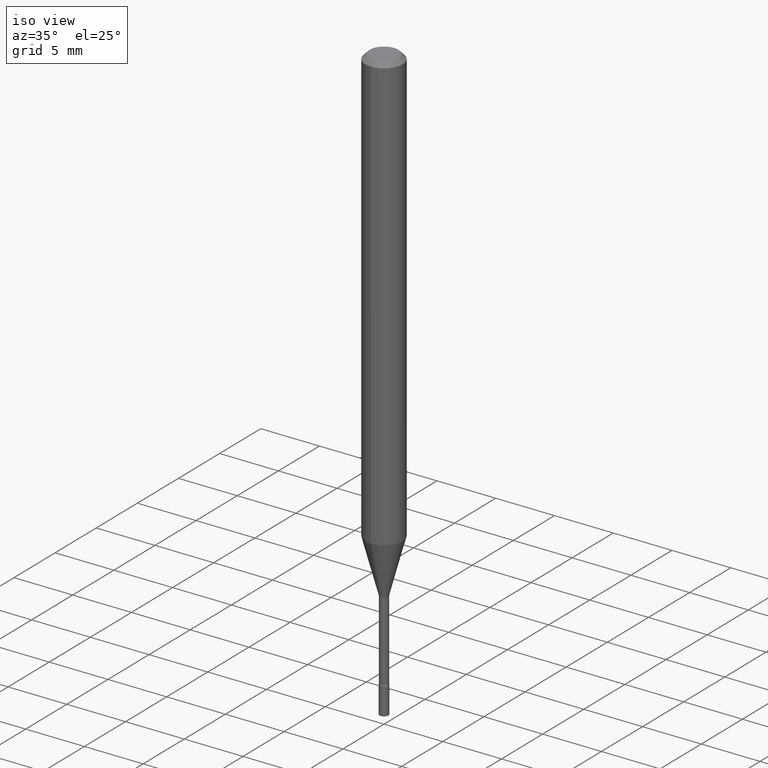
[diagram: clean part render]
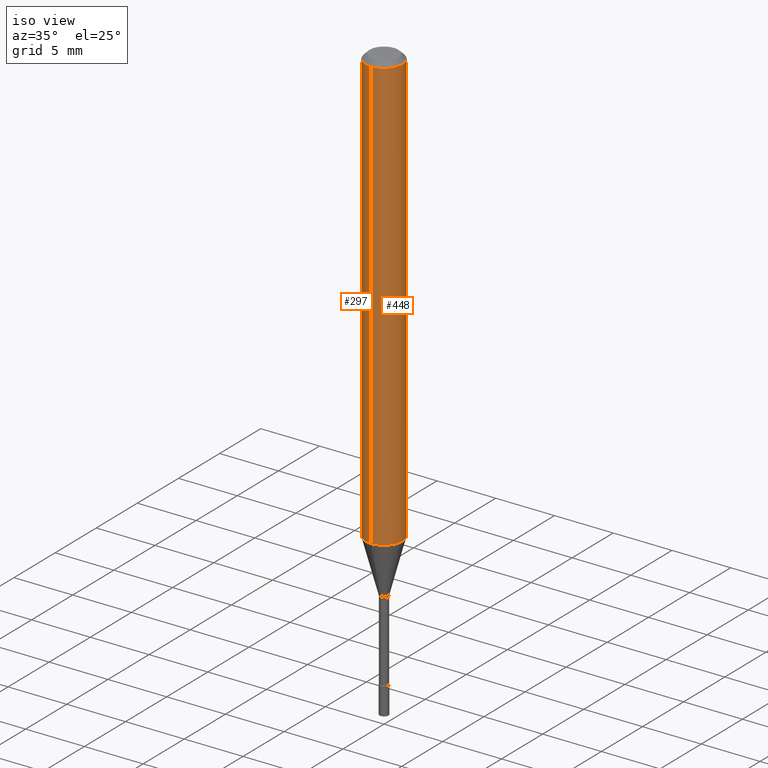
[diagram: same view with one multi-face feature highlighted, each face labeled with its STEP entity id]
A machine part, iso view. The highlighted faces form ONE feature: a constant-radius fillet chain: 2 tangent blend faces with common blend radius 1.5875 mm. The faces share edges in the B-rep.
Their STEP definitions:
[1] entity #297 (Cylinder):
#39 = VECTOR ( 'NONE', #213, 39.37007874015748143 ) ;
#55 = ORIENTED_EDGE ( 'NONE', *, *, #88, .T. ) ;
#64 = AXIS2_PLACEMENT_3D ( 'NONE', #511, #395, #173 ) ;
#82 = AXIS2_PLACEMENT_3D ( 'NONE', #109, #467, #472 ) ;
#84 = CARTESIAN_POINT ( 'NONE',  ( 0.000000000000000000, 0.000000000000000000, 0.000000000000000000 ) ) ;
#88 = EDGE_CURVE ( 'NONE', #349, #383, #328, .T. ) ;
#94 = EDGE_LOOP ( 'NONE', ( #263, #55, #135, #216 ) ) ;
#109 = CARTESIAN_POINT ( 'NONE',  ( 3.568941879278567028E-29, -5.095213877627770922E-15, -1.459368740913666640 ) ) ;
#122 = CARTESIAN_POINT ( 'NONE',  ( 4.440892098500625669E-16, 0.06250000000000000000, -2.182113803207564873E-16 ) ) ;
#135 = ORIENTED_EDGE ( 'NONE', *, *, #175, .T. ) ;
#149 = EDGE_CURVE ( 'NONE', #349, #315, #444, .T. ) ;
#161 = DIRECTION ( 'NONE',  ( -2.445538114681118856E-29, 3.491382085132104190E-15, 1.000000000000000000 ) ) ;
#173 = DIRECTION ( 'NONE',  ( -6.982962677686265922E-15, -1.000000000000000000, 3.483106191921935554E-15 ) ) ;
#175 = EDGE_CURVE ( 'NONE', #383, #373, #460, .T. ) ;
#209 = AXIS2_PLACEMENT_3D ( 'NONE', #84, #161, #270 ) ;
#213 = DIRECTION ( 'NONE',  ( -2.445538114681118576E-29, 3.491382085132104585E-15, 1.000000000000000000 ) ) ;
#216 = ORIENTED_EDGE ( 'NONE', *, *, #301, .F. ) ;
#235 = CARTESIAN_POINT ( 'NONE',  ( 4.440892098500981149E-16, 0.06249999999999489991, -1.459368740913666862 ) ) ;
#237 = CARTESIAN_POINT ( 'NONE',  ( -4.364351673553912750E-16, -0.06250000000000005551, -0.01499999999999981209 ) ) ;
#263 = ORIENTED_EDGE ( 'NONE', *, *, #149, .F. ) ;
#270 = DIRECTION ( 'NONE',  ( -6.982962677686265922E-15, -1.000000000000000000, 3.491382085132103796E-15 ) ) ;
#280 = CYLINDRICAL_SURFACE ( 'NONE', #209, 0.06250000000000000000 ) ;
#286 = CARTESIAN_POINT ( 'NONE',  ( -4.364351673553560721E-16, -0.06250000000000510703, -1.459368740913666196 ) ) ;
#294 = CARTESIAN_POINT ( 'NONE',  ( 4.440892098500985093E-16, 0.06249999999999995143, -0.01500000000000024751 ) ) ;
#297 = ADVANCED_FACE ( 'NONE', ( #363 ), #280, .T. ) ;
#301 = EDGE_CURVE ( 'NONE', #315, #373, #317, .T. ) ;
#315 = VERTEX_POINT ( 'NONE', #294 ) ;
#317 = CIRCLE ( 'NONE', #64, 0.06250000000000000000 ) ;
#328 = CIRCLE ( 'NONE', #82, 0.06250000000000000000 ) ;
#338 = DIRECTION ( 'NONE',  ( -2.445538114681118576E-29, 3.491382085132104585E-15, 1.000000000000000000 ) ) ;
#349 = VERTEX_POINT ( 'NONE', #235 ) ;
#363 = FACE_OUTER_BOUND ( 'NONE', #94, .T. ) ;
#373 = VERTEX_POINT ( 'NONE', #237 ) ;
#383 = VERTEX_POINT ( 'NONE', #286 ) ;
#395 = DIRECTION ( 'NONE',  ( -2.445538114681118856E-29, 3.491382085132104190E-15, 1.000000000000000000 ) ) ;
#422 = CARTESIAN_POINT ( 'NONE',  ( -4.364351673553916201E-16, -0.06250000000000000000, 2.182113803207564873E-16 ) ) ;
#441 = VECTOR ( 'NONE', #338, 39.37007874015748143 ) ;
#444 = LINE ( 'NONE', #122, #441 ) ;
#460 = LINE ( 'NONE', #422, #39 ) ;
#467 = DIRECTION ( 'NONE',  ( -2.445538114681118856E-29, 3.491382085132104190E-15, 1.000000000000000000 ) ) ;
#472 = DIRECTION ( 'NONE',  ( -6.982962677686265922E-15, -1.000000000000000000, 4.370956789862821150E-15 ) ) ;
#511 = CARTESIAN_POINT ( 'NONE',  ( 3.668307172021685729E-31, -5.237073127698167330E-17, -0.01500000000000003067 ) ) ;
[2] entity #448 (Cylinder):
#4 = DIRECTION ( 'NONE',  ( -2.445538114681118856E-29, 3.491382085132104190E-15, 1.000000000000000000 ) ) ;
#9 = EDGE_CURVE ( 'NONE', #383, #349, #507, .T. ) ;
#31 = AXIS2_PLACEMENT_3D ( 'NONE', #517, #452, #240 ) ;
#39 = VECTOR ( 'NONE', #213, 39.37007874015748143 ) ;
#69 = ORIENTED_EDGE ( 'NONE', *, *, #175, .F. ) ;
#80 = ORIENTED_EDGE ( 'NONE', *, *, #149, .T. ) ;
#101 = DIRECTION ( 'NONE',  ( -6.982962677686265922E-15, -1.000000000000000000, 4.370956789862821150E-15 ) ) ;
#103 = ORIENTED_EDGE ( 'NONE', *, *, #9, .T. ) ;
#108 = CIRCLE ( 'NONE', #309, 0.06250000000000000000 ) ;
#119 = CARTESIAN_POINT ( 'NONE',  ( 3.668307172021685729E-31, -5.237073127698167330E-17, -0.01500000000000003067 ) ) ;
#122 = CARTESIAN_POINT ( 'NONE',  ( 4.440892098500625669E-16, 0.06250000000000000000, -2.182113803207564873E-16 ) ) ;
#149 = EDGE_CURVE ( 'NONE', #349, #315, #444, .T. ) ;
#165 = DIRECTION ( 'NONE',  ( -6.982962677686265922E-15, -1.000000000000000000, 3.483106191921935554E-15 ) ) ;
#175 = EDGE_CURVE ( 'NONE', #383, #373, #460, .T. ) ;
#196 = EDGE_LOOP ( 'NONE', ( #103, #80, #305, #69 ) ) ;
#208 = AXIS2_PLACEMENT_3D ( 'NONE', #222, #382, #101 ) ;
#213 = DIRECTION ( 'NONE',  ( -2.445538114681118576E-29, 3.491382085132104585E-15, 1.000000000000000000 ) ) ;
#222 = CARTESIAN_POINT ( 'NONE',  ( 3.568941879278567028E-29, -5.095213877627770922E-15, -1.459368740913666640 ) ) ;
#235 = CARTESIAN_POINT ( 'NONE',  ( 4.440892098500981149E-16, 0.06249999999999489991, -1.459368740913666862 ) ) ;
#237 = CARTESIAN_POINT ( 'NONE',  ( -4.364351673553912750E-16, -0.06250000000000005551, -0.01499999999999981209 ) ) ;
#240 = DIRECTION ( 'NONE',  ( -6.982962677686265922E-15, -1.000000000000000000, 3.491382085132103796E-15 ) ) ;
#269 = CYLINDRICAL_SURFACE ( 'NONE', #31, 0.06250000000000000000 ) ;
#286 = CARTESIAN_POINT ( 'NONE',  ( -4.364351673553560721E-16, -0.06250000000000510703, -1.459368740913666196 ) ) ;
#294 = CARTESIAN_POINT ( 'NONE',  ( 4.440892098500985093E-16, 0.06249999999999995143, -0.01500000000000024751 ) ) ;
#305 = ORIENTED_EDGE ( 'NONE', *, *, #384, .F. ) ;
#309 = AXIS2_PLACEMENT_3D ( 'NONE', #119, #4, #165 ) ;
#315 = VERTEX_POINT ( 'NONE', #294 ) ;
#338 = DIRECTION ( 'NONE',  ( -2.445538114681118576E-29, 3.491382085132104585E-15, 1.000000000000000000 ) ) ;
#349 = VERTEX_POINT ( 'NONE', #235 ) ;
#358 = FACE_OUTER_BOUND ( 'NONE', #196, .T. ) ;
#373 = VERTEX_POINT ( 'NONE', #237 ) ;
#382 = DIRECTION ( 'NONE',  ( -2.445538114681118856E-29, 3.491382085132104190E-15, 1.000000000000000000 ) ) ;
#383 = VERTEX_POINT ( 'NONE', #286 ) ;
#384 = EDGE_CURVE ( 'NONE', #373, #315, #108, .T. ) ;
#422 = CARTESIAN_POINT ( 'NONE',  ( -4.364351673553916201E-16, -0.06250000000000000000, 2.182113803207564873E-16 ) ) ;
#441 = VECTOR ( 'NONE', #338, 39.37007874015748143 ) ;
#444 = LINE ( 'NONE', #122, #441 ) ;
#448 = ADVANCED_FACE ( 'NONE', ( #358 ), #269, .T. ) ;
#452 = DIRECTION ( 'NONE',  ( -2.445538114681118856E-29, 3.491382085132104190E-15, 1.000000000000000000 ) ) ;
#460 = LINE ( 'NONE', #422, #39 ) ;
#507 = CIRCLE ( 'NONE', #208, 0.06250000000000000000 ) ;
#517 = CARTESIAN_POINT ( 'NONE',  ( 0.000000000000000000, 0.000000000000000000, 0.000000000000000000 ) ) ;